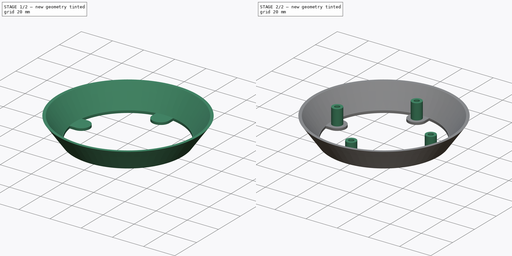
[diagram: build sequence overview — one tinted view per stage of 2, left to right]
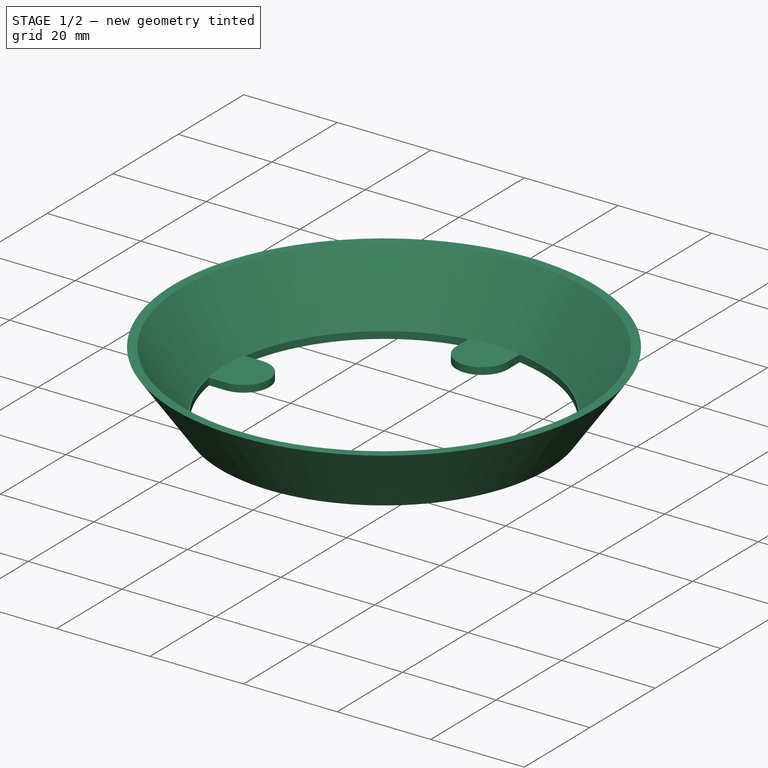
[diagram: stage 1 of 2 — iso view after this stage's code; geometry added in this stage tinted green]
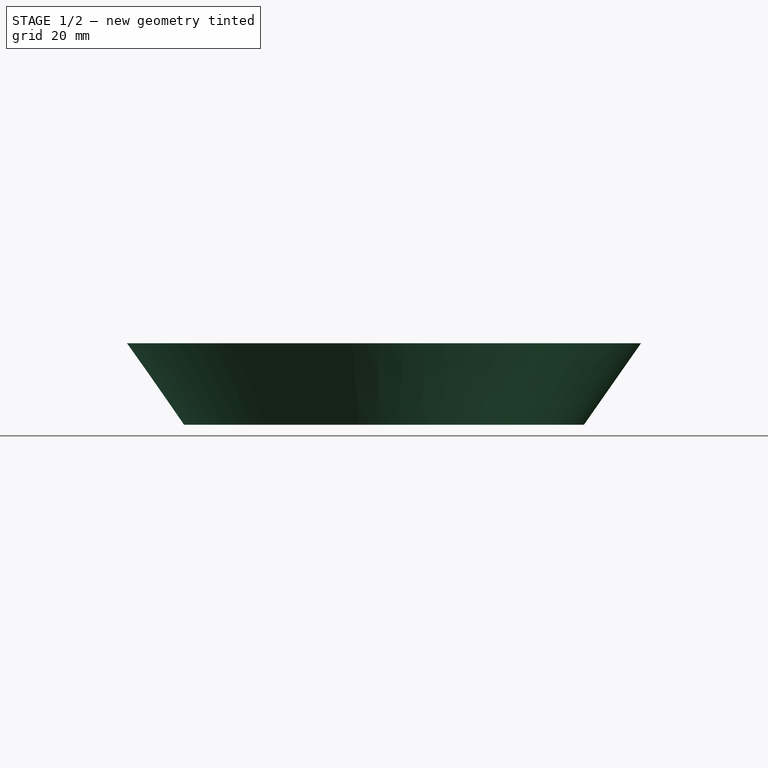
[diagram: stage 1 of 2 — front view after this stage's code; geometry added in this stage tinted green]
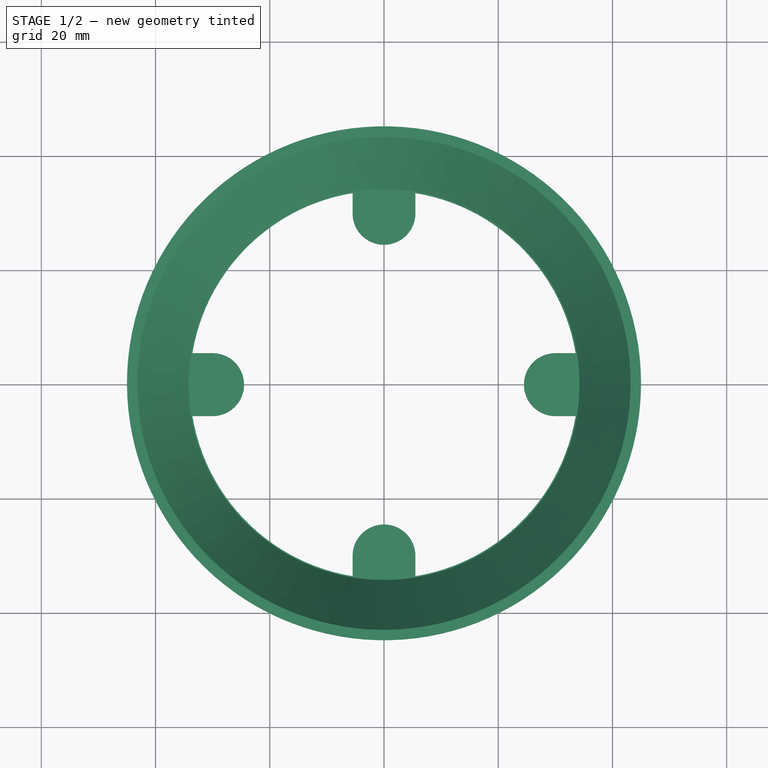
[diagram: stage 1 of 2 — top view after this stage's code; geometry added in this stage tinted green]
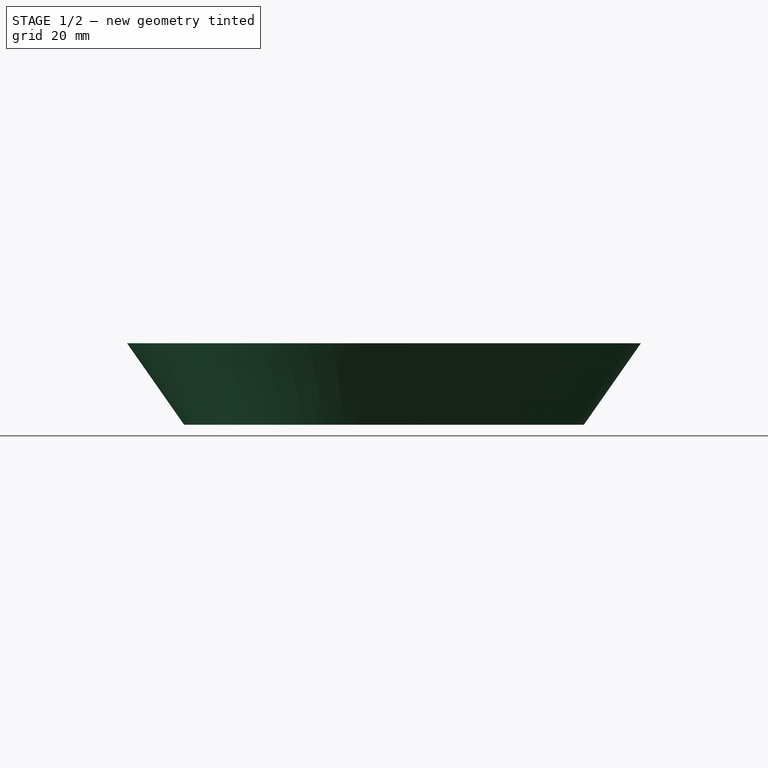
[diagram: stage 1 of 2 — right view after this stage's code; geometry added in this stage tinted green]
FCSTD DOCUMENT  (FreeCAD 0.19R24267 +148 (Git))
Label: Stevenson_screen_middle_v1
License: All rights reserved
LicenseURL: http://en.wikipedia.org/wiki/All_rights_reserved
objects: Sketcher::SketchObject×4, PartDesign::Pocket×2, PartDesign::Revolution×1, PartDesign::Pad×1, PartDesign::Body×1
note: 13 computed .brp shape members not serialized (recipe doc carries the construction recipe); baked Part::Feature solids carry a one-line shape summary decoded from their .brp

FEATURE [Sketcher::SketchObject] Sketch
  FullyConstrained = false
  MapMode = 5
  Placement = pos=(0,0,0) rot=(1,0,0;1.5708rad)
  Support = -> [XZ_Plane]
  sketch-geometry (7):
    g0: LineSegment StartX=0 StartY=0 StartZ=0 EndX=35 EndY=0 EndZ=0
    g1: LineSegment StartX=35 StartY=0 StartZ=0 EndX=45 EndY=14.2815 EndZ=0
    g2: LineSegment StartX=45 StartY=14.2815 StartZ=0 EndX=43.1688 EndY=14.2815 EndZ=0
    g3: LineSegment StartX=43.1688 StartY=14.2815 StartZ=0 EndX=34.2191 EndY=1.5 EndZ=0
    g4: LineSegment StartX=34.2191 StartY=1.5 StartZ=0 EndX=0 EndY=1.5 EndZ=0
    g5: LineSegment StartX=0 StartY=1.5 StartZ=0 EndX=0 EndY=0 EndZ=0
    g6: LineSegment StartX=45.569 StartY=17.7093 StartZ=0 EndX=46.7977 EndY=16.8489 EndZ=0
  constraints (20):
    c: Coincident(g0,g-1)
    c: PointOnObject(g0,g-1)
    c: Coincident(g1,g0)
    c: Coincident(g2,g1)
    c: Horizontal(g2)
    c: Coincident(g3,g2)
    c: Coincident(g4,g3)
    c: PointOnObject(g4,g-2)
    c: Horizontal(g4)
    c: Coincident(g5,g0)
    c: Parallel(g1,g3)
    c: Angle(g1,g-1) = 2.18166
    c: Coincident(g4,g5)
    c: DistanceX(g0,g0) = 35
    c: DistanceX(g1,g1) = 10
    c: DistanceY(g5,g5) = 1.5
    c: PointOnObject(g6,g3)
    c: PointOnObject(g6,g1)
    c: Perpendicular(g6,g3)
    c: Equal(g6,g5)
FEATURE [PartDesign::Revolution] Revolution
  Angle = 360
  Axis = (0,2e-16,1)
  Base = (0,0,0)
  Placement = pos=(0,0,0) rot=(1,0,0;1.5708rad)
  Profile = -> Sketch
  ReferenceAxis = -> Sketch [V_Axis]
  Reversed = true
FEATURE [Sketcher::SketchObject] Sketch001
  FullyConstrained = true
  MapMode = 5
  Placement = pos=(0,1e-15,1.5) rot=(0,0,1;3.14159rad)
  Support = -> [Revolution]
  sketch-geometry (18):
    g0: LineSegment StartX=0 StartY=30 StartZ=0 EndX=0 EndY=-30 EndZ=0
    g1: LineSegment StartX=-30 StartY=0 StartZ=0 EndX=30 EndY=0 EndZ=0
    g2: ArcOfCircle CenterX=0 CenterY=0 CenterZ=0 NormalX=0 NormalY=0 NormalZ=1 AngleXU=0 Radius=34 StartAngle=1.73327 EndAngle=2.97911
    g3: ArcOfCircle CenterX=0 CenterY=30 CenterZ=0 NormalX=0 NormalY=0 NormalZ=1 AngleXU=0 Radius=5.5 StartAngle=3.14159 EndAngle=6.28319
    g4: LineSegment StartX=-5.5 StartY=30 StartZ=0 EndX=-5.5 EndY=33.5522 EndZ=0
    g5: LineSegment StartX=5.5 StartY=30 StartZ=0 EndX=5.5 EndY=33.5522 EndZ=0
    g6: ArcOfCircle CenterX=30 CenterY=0 CenterZ=0 NormalX=0 NormalY=0 NormalZ=1 AngleXU=0 Radius=5.5 StartAngle=1.5708 EndAngle=4.71239
    g7: ArcOfCircle CenterX=0 CenterY=-30 CenterZ=0 NormalX=0 NormalY=0 NormalZ=1 AngleXU=0 Radius=5.5 StartAngle=1e-16 EndAngle=3.14159
    g8: ArcOfCircle CenterX=-30 CenterY=0 CenterZ=0 NormalX=0 NormalY=0 NormalZ=1 AngleXU=0 Radius=5.5 StartAngle=4.71239 EndAngle=7.85398
    g9: LineSegment StartX=30 StartY=5.5 StartZ=0 EndX=33.5522 EndY=5.5 EndZ=0
    g10: LineSegment StartX=-30 StartY=5.5 StartZ=0 EndX=-33.5522 EndY=5.5 EndZ=0
    g11: LineSegment StartX=-30 StartY=-5.5 StartZ=0 EndX=-33.5522 EndY=-5.5 EndZ=0
    g12: LineSegment StartX=30 StartY=-5.5 StartZ=0 EndX=33.5522 EndY=-5.5 EndZ=0
    g13: LineSegment StartX=5.5 StartY=-30 StartZ=0 EndX=5.5 EndY=-33.5522 EndZ=0
    g14: LineSegment StartX=-5.5 StartY=-30 StartZ=0 EndX=-5.5 EndY=-33.5522 EndZ=0
    g15: ArcOfCircle CenterX=0 CenterY=0 CenterZ=0 NormalX=0 NormalY=0 NormalZ=1 AngleXU=0 Radius=34 StartAngle=3.30407 EndAngle=4.54991
    g16: ArcOfCircle CenterX=0 CenterY=0 CenterZ=0 NormalX=0 NormalY=0 NormalZ=1 AngleXU=0 Radius=34 StartAngle=0.162479 EndAngle=1.40832
    g17: ArcOfCircle CenterX=0 CenterY=0 CenterZ=0 NormalX=0 NormalY=0 NormalZ=1 AngleXU=0 Radius=34 StartAngle=4.87487 EndAngle=6.12071
  constraints (54):
    c: PointOnObject(g0,g-2)
    c: PointOnObject(g0,g-2)
    c: PointOnObject(g1,g-1)
    c: PointOnObject(g1,g-1)
    c: Equal(g1,g0)
    c: DistanceX(g1,g-1) = 30
    c: DistanceX(g1,g1) = 60
    c: DistanceY(g-1,g0) = 30
    c: Coincident(g2,g-1)
    c: Radius(g2) = 34
    c: Coincident(g3,g0)
    c: Radius(g3) = 5.5
    c: Vertical(g4)
    c: Vertical(g5)
    c: Tangent(g3,g4) = 1.5708
    c: Tangent(g3,g5) = -1.5708
    c: Coincident(g2,g4)
    c: Coincident(g16,g5)
    c: Coincident(g6,g1)
    c: Coincident(g7,g0)
    c: Coincident(g8,g1)
    c: Equal(g6,g3)
    c: Equal(g3,g8)
    c: Equal(g8,g7)
    c: Horizontal(g9)
    c: Horizontal(g10)
    c: PointOnObject(g11,g2)
    c: Horizontal(g11)
    c: PointOnObject(g9,g2)
    c: PointOnObject(g12,g2)
    c: Horizontal(g12)
    c: Equal(g12,g9)
    c: PointOnObject(g13,g2)
    c: Vertical(g13)
    c: PointOnObject(g14,g2)
    c: Vertical(g14)
    c: Equal(g14,g13)
    c: Coincident(g2,g15)
    c: Tangent(g8,g10) = -1.5708
    c: Coincident(g2,g10)
    c: Tangent(g8,g11) = 1.5708
    c: PointOnObject(g15,g11)
    c: Tangent(g6,g9) = 1.5708
    c: Equal(g15,g16)
    c: PointOnObject(g16,g9)
    c: Coincident(g15,g16)
    c: Coincident(g6,g12)
    c: Coincident(g12,g17)
    c: Tangent(g7,g13) = 1.5708
    c: Equal(g15,g17)
    c: PointOnObject(g17,g13)
    c: Coincident(g15,g17)
    c: Coincident(g7,g14)
    c: PointOnObject(g15,g14)
FEATURE [PartDesign::Pocket] Pocket
  BaseFeature = -> Revolution
  Length = 2
  Length2 = 100
  Placement = pos=(0,0,0) rot=(1,0,0;1.5708rad)
  Profile = -> Sketch001
  Type = 0
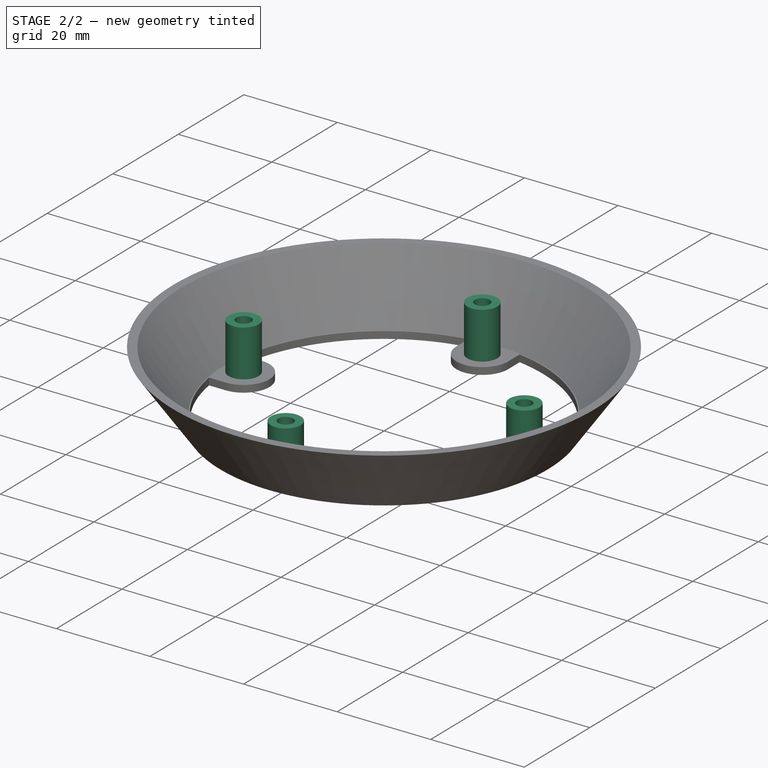
[diagram: stage 2 of 2 — iso view after this stage's code; geometry added in this stage tinted green]
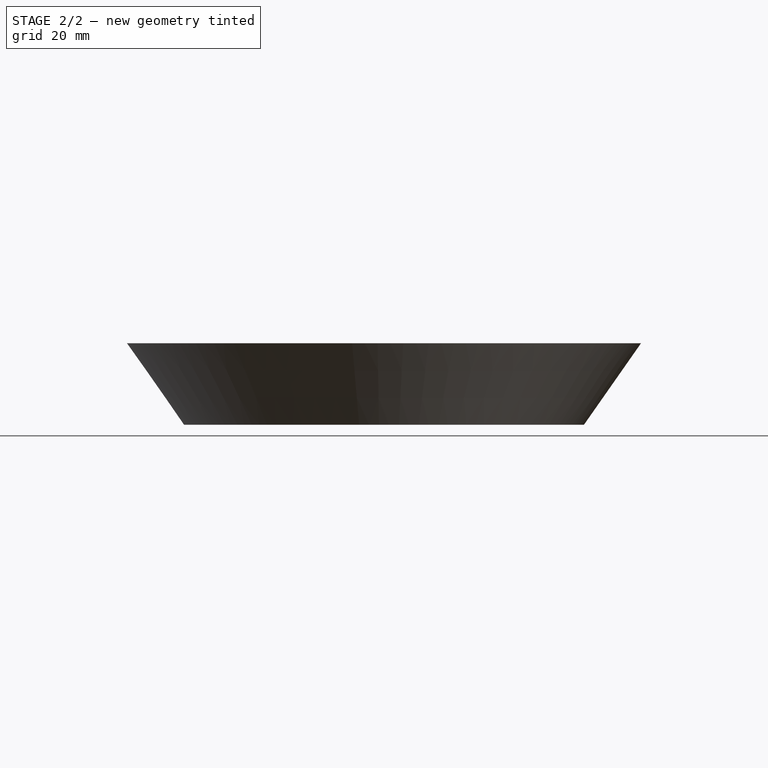
[diagram: stage 2 of 2 — front view after this stage's code; geometry added in this stage tinted green]
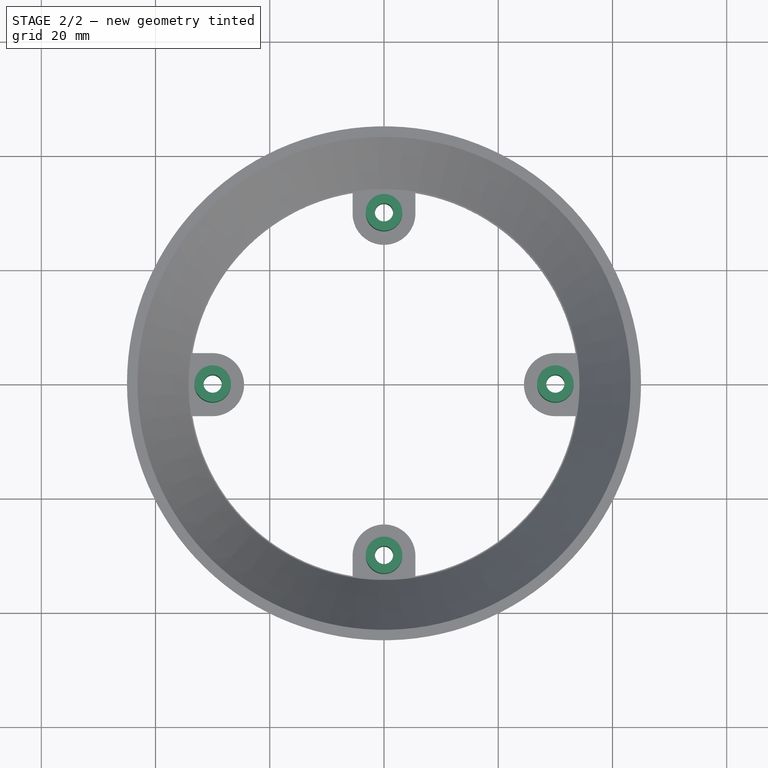
[diagram: stage 2 of 2 — top view after this stage's code; geometry added in this stage tinted green]
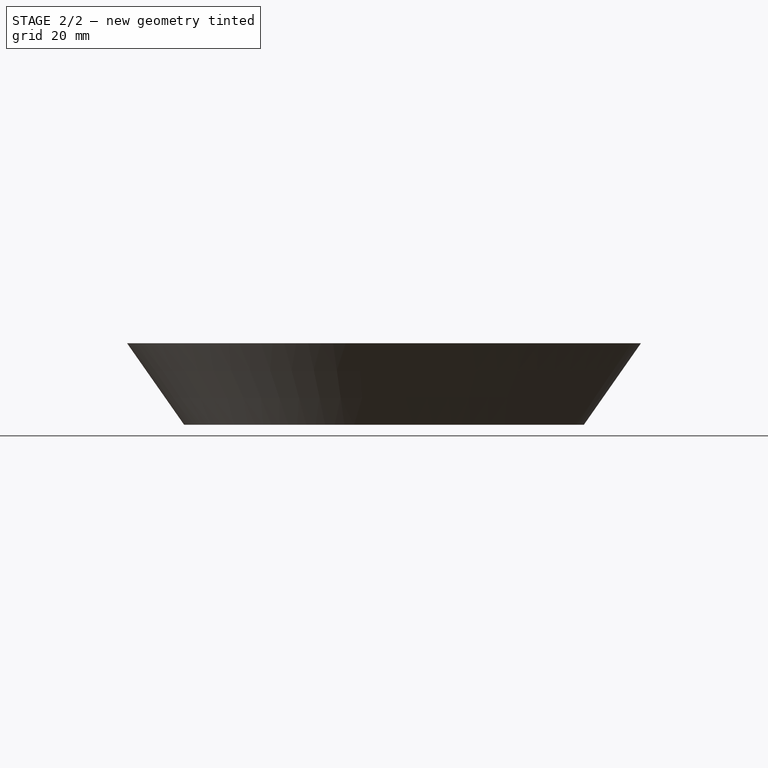
[diagram: stage 2 of 2 — right view after this stage's code; geometry added in this stage tinted green]
FEATURE [Sketcher::SketchObject] Sketch002
  FullyConstrained = true
  MapMode = 5
  Placement = pos=(0,1.2e-15,1.5) rot=(0,0,1;3.14159rad)
  Support = -> [Pocket]
  sketch-geometry (10):
    g0: LineSegment StartX=0 StartY=30 StartZ=0 EndX=0 EndY=-30 EndZ=0
    g1: LineSegment StartX=-30 StartY=0 StartZ=0 EndX=30 EndY=0 EndZ=0
    g2: Circle CenterX=0 CenterY=30 CenterZ=0 NormalX=0 NormalY=0 NormalZ=1 AngleXU=0 Radius=3.2
    g3: Circle CenterX=30 CenterY=0 CenterZ=0 NormalX=0 NormalY=0 NormalZ=1 AngleXU=0 Radius=3.2
    g4: Circle CenterX=-30 CenterY=0 CenterZ=0 NormalX=0 NormalY=0 NormalZ=1 AngleXU=0 Radius=3.2
    g5: Circle CenterX=0 CenterY=-30 CenterZ=0 NormalX=0 NormalY=0 NormalZ=1 AngleXU=0 Radius=3.2
    g6: Circle CenterX=0 CenterY=30 CenterZ=0 NormalX=0 NormalY=0 NormalZ=1 AngleXU=0 Radius=1.6
    g7: Circle CenterX=30 CenterY=0 CenterZ=0 NormalX=0 NormalY=0 NormalZ=1 AngleXU=0 Radius=1.6
    g8: Circle CenterX=0 CenterY=-30 CenterZ=0 NormalX=0 NormalY=0 NormalZ=1 AngleXU=0 Radius=1.6
    g9: Circle CenterX=-30 CenterY=0 CenterZ=0 NormalX=0 NormalY=0 NormalZ=1 AngleXU=0 Radius=1.6
  constraints (24):
    c: PointOnObject(g0,g-2)
    c: PointOnObject(g0,g-2)
    c: PointOnObject(g1,g-1)
    c: PointOnObject(g1,g-1)
    c: Equal(g0,g1)
    c: DistanceX(g1,g1) = 60
    c: DistanceX(g1,g-1) = 30
    c: DistanceY(g-1,g0) = 30
    c: Coincident(g2,g0)
    c: Coincident(g3,g1)
    c: Coincident(g4,g1)
    c: Coincident(g5,g0)
    c: Coincident(g6,g2)
    c: Coincident(g7,g3)
    c: Coincident(g8,g5)
    c: Coincident(g9,g4)
    c: Radius(g2) = 3.2
    c: Equal(g2,g3)
    c: Equal(g3,g4)
    c: Equal(g4,g5)
    c: Radius(g6) = 1.6
    c: Equal(g6,g9)
    c: Equal(g9,g7)
    c: Equal(g7,g8)
FEATURE [PartDesign::Pad] Pad
  BaseFeature = -> Pocket
  Direction = (1,1,1)
  Length = 10
  Length2 = 100
  Placement = pos=(0,0,0) rot=(1,0,0;1.5708rad)
  Profile = -> Sketch002
  Type = 0
FEATURE [Sketcher::SketchObject] Sketch003
  FullyConstrained = true
  MapMode = 5
  Placement = pos=(0,0,0) rot=(1,0,0;3.14159rad)
  Support = -> [Pad]
  sketch-geometry (6):
    g0: LineSegment StartX=0 StartY=30 StartZ=0 EndX=0 EndY=-30 EndZ=0
    g1: LineSegment StartX=-30 StartY=0 StartZ=0 EndX=30 EndY=0 EndZ=0
    g2: Circle CenterX=0 CenterY=30 CenterZ=0 NormalX=0 NormalY=0 NormalZ=1 AngleXU=0 Radius=1.6
    g3: Circle CenterX=30 CenterY=0 CenterZ=0 NormalX=0 NormalY=0 NormalZ=1 AngleXU=0 Radius=1.6
    g4: Circle CenterX=-30 CenterY=0 CenterZ=0 NormalX=0 NormalY=0 NormalZ=1 AngleXU=0 Radius=1.6
    g5: Circle CenterX=0 CenterY=-30 CenterZ=0 NormalX=0 NormalY=0 NormalZ=1 AngleXU=0 Radius=1.6
  constraints (16):
    c: PointOnObject(g0,g-2)
    c: PointOnObject(g0,g-2)
    c: PointOnObject(g1,g-1)
    c: PointOnObject(g1,g-1)
    c: DistanceX(g1,g1) = 60
    c: Equal(g0,g1)
    c: DistanceX(g1,g-1) = 30
    c: DistanceY(g-1,g0) = 30
    c: Coincident(g2,g0)
    c: Coincident(g3,g1)
    c: Coincident(g4,g1)
    c: Coincident(g5,g0)
    c: Radius(g2) = 1.6
    c: Equal(g4,g2)
    c: Equal(g2,g3)
    c: Equal(g3,g5)
FEATURE [PartDesign::Pocket] Pocket001
  BaseFeature = -> Pad
  Length = 2
  Length2 = 100
  Placement = pos=(0,0,0) rot=(1,0,0;1.5708rad)
  Profile = -> Sketch003
  Type = 0
FEATURE [PartDesign::Body] Body
  Group = -> [Sketch,Revolution,Sketch001,Pocket,Sketch002,Pad,Sketch003,Pocket001]
  Origin = -> Origin
  Tip = -> Pocket001
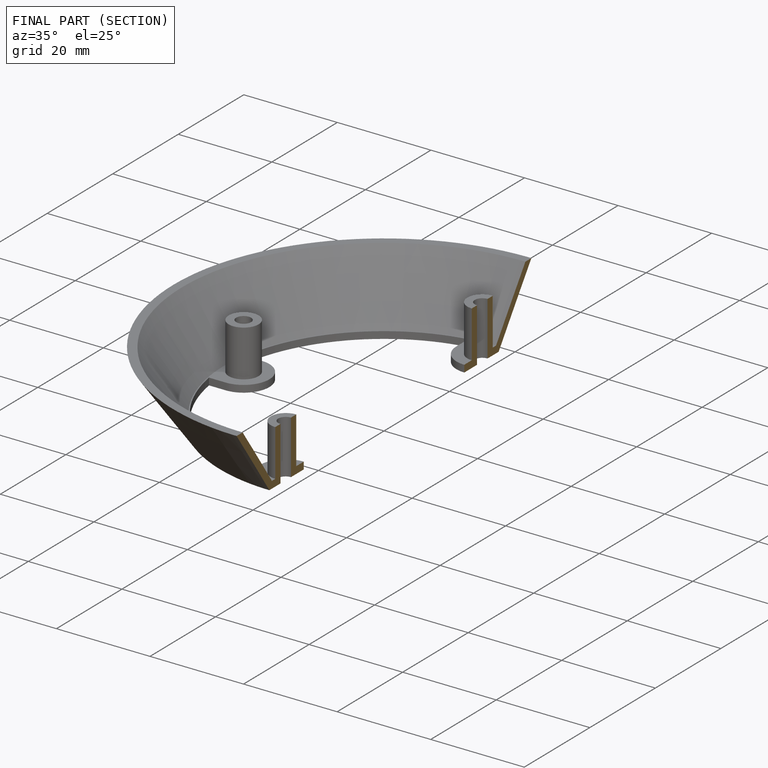
[diagram: finished part — half-section view (interior)]
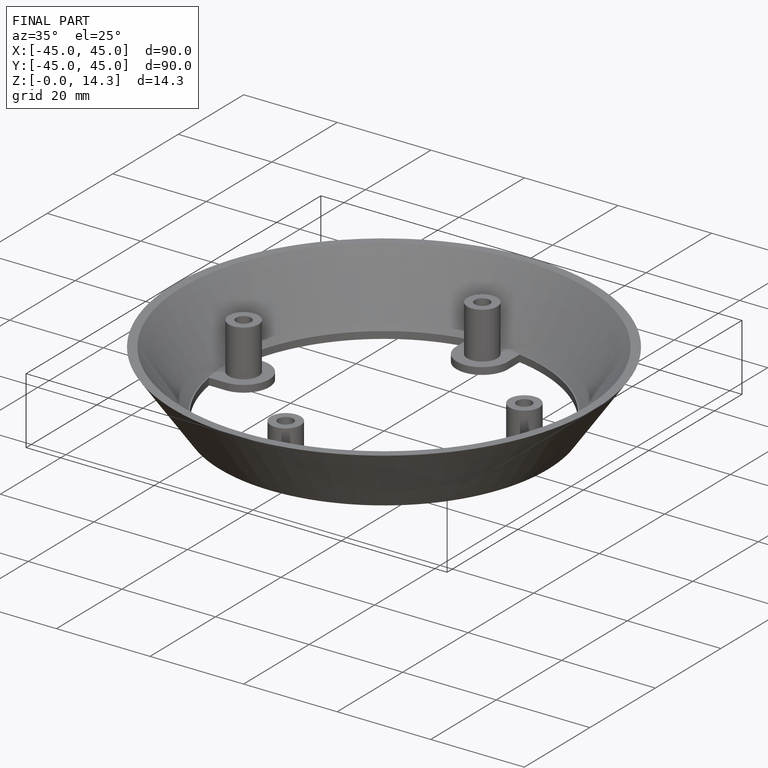
[diagram: finished part — iso view with bounding-box wireframe]
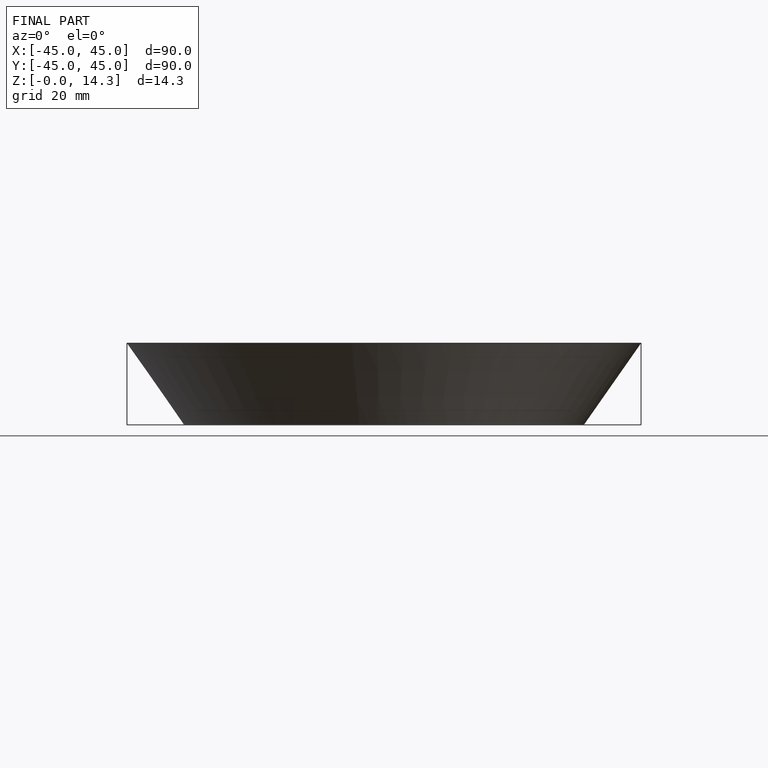
[diagram: finished part — front view with bounding-box wireframe]
